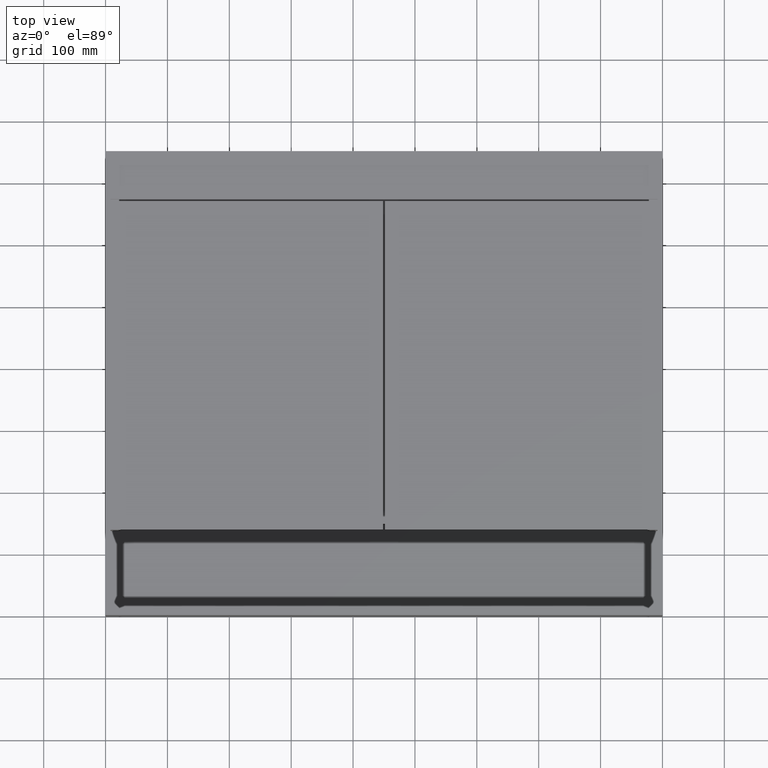
[diagram: clean part render]
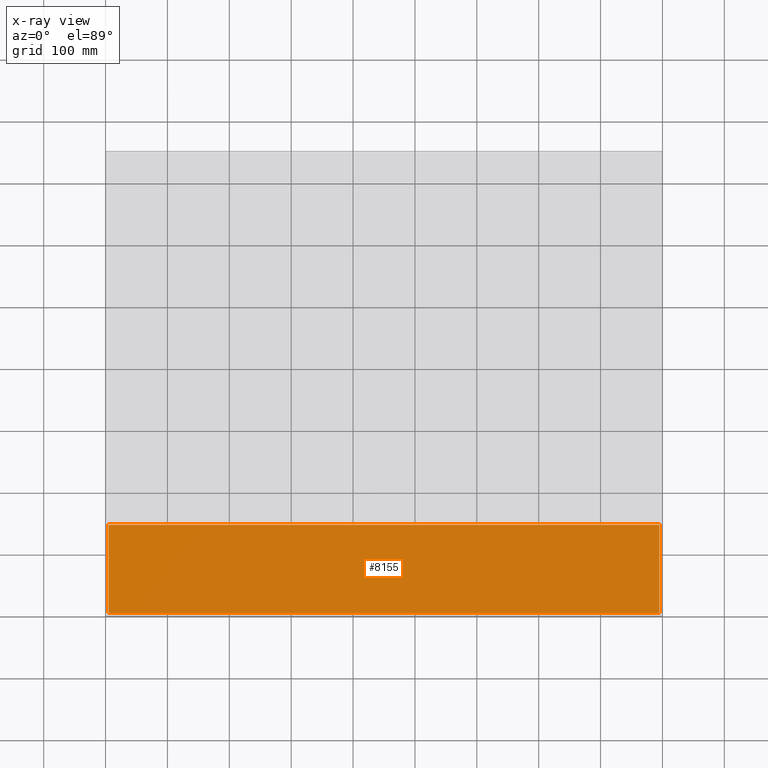
[diagram: x-ray — body ghosted, one internal face saturated and labeled with its STEP entity id]
A machine part, top view, then the same camera in x-ray: the body is ghosted and one INTERNAL B-rep face — a face not visible from any outside direction — is saturated and labeled: STEP entity #8155.
In plain terms, the highlighted planar face has unit normal (-0, 0, 1).
Its self-contained STEP definition (entity closure, byte-faithful):
#207 = CARTESIAN_POINT ( 'NONE',  ( 895.0000000000000000, 1038.035954329935976, -124.9999999999997868 ) ) ;
#329 = VECTOR ( 'NONE', #6338, 1000.000000000000000 ) ;
#444 = VERTEX_POINT ( 'NONE', #7979 ) ;
#472 = VERTEX_POINT ( 'NONE', #9781 ) ;
#680 = CARTESIAN_POINT ( 'NONE',  ( 5.000000000000004441, 148.0000000000000284, -124.9999999999999432 ) ) ;
#810 = CARTESIAN_POINT ( 'NONE',  ( 5.000000000000004441, 1038.035954329935976, -124.9999999999999432 ) ) ;
#1180 = EDGE_CURVE ( 'NONE', #6712, #472, #10630, .T. ) ;
#1787 = VERTEX_POINT ( 'NONE', #680 ) ;
#2187 = ORIENTED_EDGE ( 'NONE', *, *, #4703, .F. ) ;
#2350 = EDGE_CURVE ( 'NONE', #444, #6712, #7932, .T. ) ;
#2677 = EDGE_CURVE ( 'NONE', #1787, #472, #8538, .T. ) ;
#2888 = CARTESIAN_POINT ( 'NONE',  ( 5.000000000000004441, 5.000000000000004441, -124.9999999999999432 ) ) ;
#2932 = LINE ( 'NONE', #6385, #6666 ) ;
#2953 = CARTESIAN_POINT ( 'NONE',  ( 5.000000000000004441, 1038.035954329935976, -124.9999999999999432 ) ) ;
#3294 = ORIENTED_EDGE ( 'NONE', *, *, #1180, .T. ) ;
#3638 = DIRECTION ( 'NONE',  ( -0.0000000000000000000, -1.000000000000000000, -0.0000000000000000000 ) ) ;
#3717 = CARTESIAN_POINT ( 'NONE',  ( 895.0000000000000000, 5.000000000000004441, -124.9999999999997868 ) ) ;
#4243 = DIRECTION ( 'NONE',  ( -0.0000000000000000000, -1.000000000000000000, -0.0000000000000000000 ) ) ;
#4703 = EDGE_CURVE ( 'NONE', #444, #1787, #2932, .T. ) ;
#6261 = EDGE_LOOP ( 'NONE', ( #2187, #6585, #3294, #7530 ) ) ;
#6338 = DIRECTION ( 'NONE',  ( -1.000000000000000000, -0.0000000000000000000, -1.715232200965831856E-16 ) ) ;
#6385 = CARTESIAN_POINT ( 'NONE',  ( 5.000000000000004441, 148.0000000000000284, -124.9999999999999432 ) ) ;
#6404 = DIRECTION ( 'NONE',  ( -1.715232200965831856E-16, 0.0000000000000000000, 1.000000000000000000 ) ) ;
#6585 = ORIENTED_EDGE ( 'NONE', *, *, #2350, .T. ) ;
#6666 = VECTOR ( 'NONE', #9829, 1000.000000000000000 ) ;
#6712 = VERTEX_POINT ( 'NONE', #3717 ) ;
#7260 = FACE_OUTER_BOUND ( 'NONE', #6261, .T. ) ;
#7530 = ORIENTED_EDGE ( 'NONE', *, *, #2677, .F. ) ;
#7932 = LINE ( 'NONE', #207, #8966 ) ;
#7979 = CARTESIAN_POINT ( 'NONE',  ( 895.0000000000000000, 148.0000000000000284, -124.9999999999997868 ) ) ;
#8155 = ADVANCED_FACE ( 'NONE', ( #7260 ), #10697, .F. ) ;
#8538 = LINE ( 'NONE', #810, #8596 ) ;
#8596 = VECTOR ( 'NONE', #4243, 1000.000000000000000 ) ;
#8966 = VECTOR ( 'NONE', #3638, 1000.000000000000000 ) ;
#9263 = AXIS2_PLACEMENT_3D ( 'NONE', #2953, #6404, #9850 ) ;
#9781 = CARTESIAN_POINT ( 'NONE',  ( 5.000000000000004441, 5.000000000000004441, -124.9999999999999432 ) ) ;
#9829 = DIRECTION ( 'NONE',  ( -1.000000000000000000, 0.0000000000000000000, -1.715232200965831856E-16 ) ) ;
#9850 = DIRECTION ( 'NONE',  ( 1.000000000000000000, 0.0000000000000000000, 1.715232200965831856E-16 ) ) ;
#10630 = LINE ( 'NONE', #2888, #329 ) ;
#10697 = PLANE ( 'NONE',  #9263 ) ;